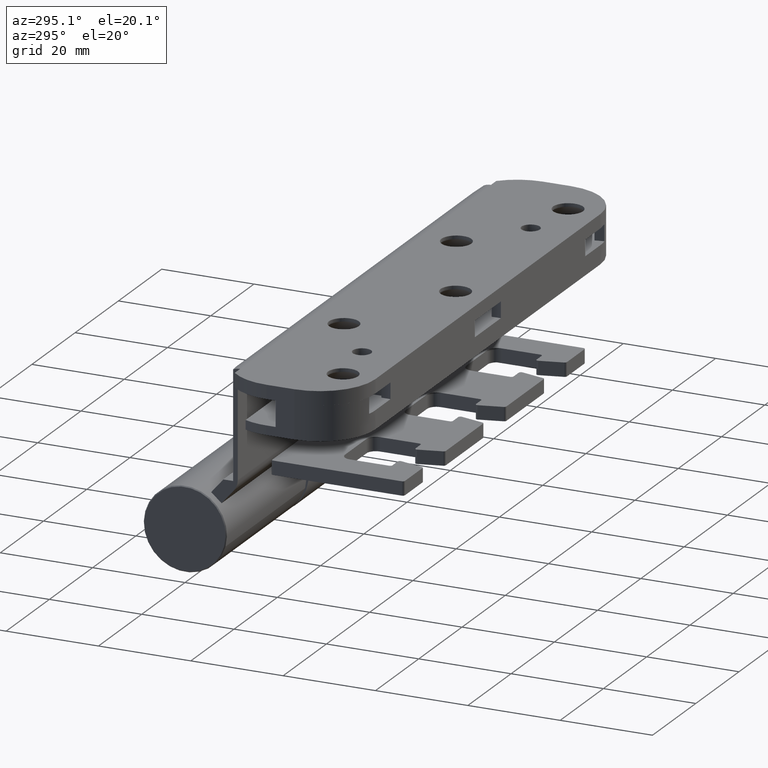
[diagram: clean part render]
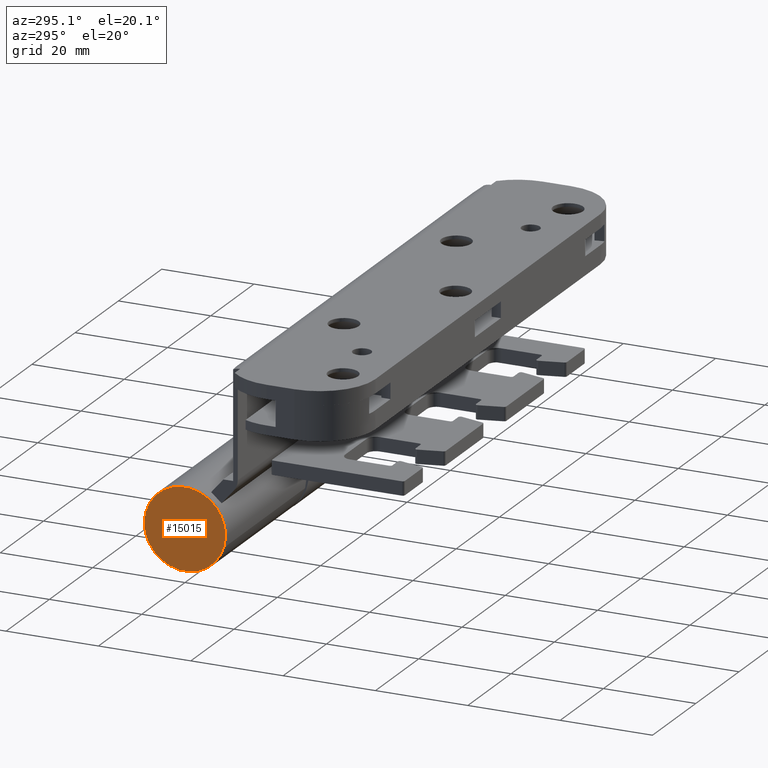
[diagram: same view with one face highlighted and labeled with its STEP entity id]
A machine part, auxiliary view. The second image highlights one B-rep face of the part: STEP entity #15015.
In plain terms, the highlighted planar face has unit normal (1, -0, 0).
Its self-contained STEP definition (entity closure, byte-faithful):
#888 = DIRECTION ( 'NONE',  ( 3.214216435727797397E-16, -1.110223024625154568E-16, 1.000000000000000000 ) ) ;
#1520 = EDGE_LOOP ( 'NONE', ( #8442, #13952 ) ) ;
#2042 = VERTEX_POINT ( 'NONE', #10445 ) ;
#2586 = FACE_OUTER_BOUND ( 'NONE', #1520, .T. ) ;
#3204 = EDGE_CURVE ( 'NONE', #3531, #2042, #18591, .T. ) ;
#3531 = VERTEX_POINT ( 'NONE', #3887 ) ;
#3887 = CARTESIAN_POINT ( 'NONE',  ( 36.99999999999999289, -9.769962616701380317E-16, 8.800000000000032685 ) ) ;
#4717 = DIRECTION ( 'NONE',  ( 0.000000000000000000, -1.110223024625154322E-16, 1.000000000000000000 ) ) ;
#4908 = CIRCLE ( 'NONE', #10368, 8.800000000000016698 ) ;
#6027 = DIRECTION ( 'NONE',  ( -1.000000000000000000, -2.457646059305951822E-16, -3.214216435727796411E-16 ) ) ;
#8369 = DIRECTION ( 'NONE',  ( -1.000000000000000000, -2.457646059305951822E-16, -3.214216435727796411E-16 ) ) ;
#8442 = ORIENTED_EDGE ( 'NONE', *, *, #3204, .F. ) ;
#8461 = DIRECTION ( 'NONE',  ( 0.000000000000000000, -1.110223024625154322E-16, 1.000000000000000000 ) ) ;
#8552 = PLANE ( 'NONE',  #15946 ) ;
#10368 = AXIS2_PLACEMENT_3D ( 'NONE', #18251, #6027, #4717 ) ;
#10414 = EDGE_CURVE ( 'NONE', #2042, #3531, #4908, .T. ) ;
#10445 = CARTESIAN_POINT ( 'NONE',  ( 36.99999999999999289, 2.053457682564473272E-15, -8.799999999999981171 ) ) ;
#10520 = AXIS2_PLACEMENT_3D ( 'NONE', #16147, #8369, #8461 ) ;
#13952 = ORIENTED_EDGE ( 'NONE', *, *, #10414, .F. ) ;
#14725 = DIRECTION ( 'NONE',  ( -1.000000000000000000, -2.457646059305952808E-16, 3.214216435727796904E-16 ) ) ;
#15015 = ADVANCED_FACE ( 'NONE', ( #2586 ), #8552, .F. ) ;
#15946 = AXIS2_PLACEMENT_3D ( 'NONE', #16340, #14725, #888 ) ;
#16147 = CARTESIAN_POINT ( 'NONE',  ( 36.99999999999999289, -4.333342374871280669E-31, 1.821459649775647449E-14 ) ) ;
#16340 = CARTESIAN_POINT ( 'NONE',  ( 37.00000000000000711, 8.800000000000022027, 4.964657937173779660E-15 ) ) ;
#18251 = CARTESIAN_POINT ( 'NONE',  ( 36.99999999999999289, -4.333342374871280669E-31, 1.821459649775647449E-14 ) ) ;
#18591 = CIRCLE ( 'NONE', #10520, 8.800000000000016698 ) ;